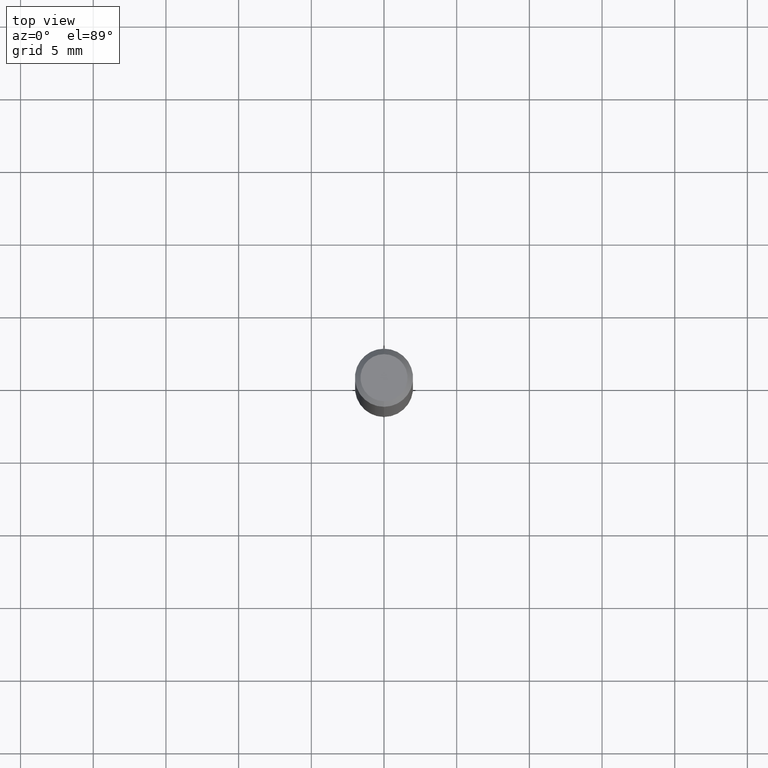
[diagram: clean part render]
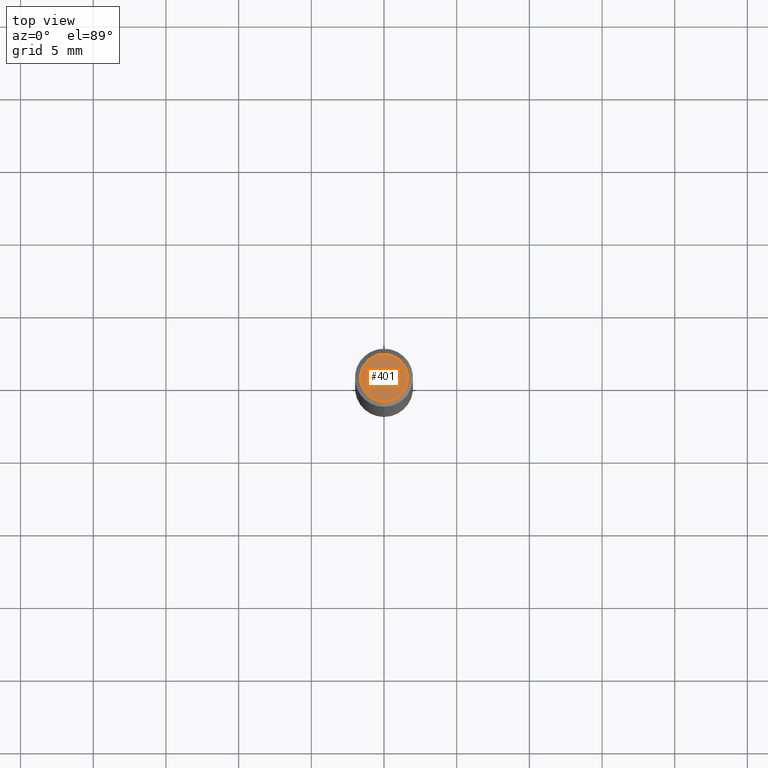
[diagram: same view with one face highlighted and labeled with its STEP entity id]
A machine part, top view. The second image highlights one B-rep face of the part: STEP entity #401.
In plain terms, the highlighted planar face has unit normal (0, -0, -1).
Its self-contained STEP definition (entity closure, byte-faithful):
#11 = AXIS2_PLACEMENT_3D ( 'NONE', #97, #333, #405 ) ;
#17 = FACE_OUTER_BOUND ( 'NONE', #79, .T. ) ;
#38 = VERTEX_POINT ( 'NONE', #270 ) ;
#39 = CARTESIAN_POINT ( 'NONE',  ( -5.749254559523100679E-45, 8.208447988563890447E-31, 2.350987752947930189E-16 ) ) ;
#53 = VERTEX_POINT ( 'NONE', #194 ) ;
#79 = EDGE_LOOP ( 'NONE', ( #318, #413 ) ) ;
#94 = EDGE_CURVE ( 'NONE', #38, #53, #262, .T. ) ;
#97 = CARTESIAN_POINT ( 'NONE',  ( 4.451638707024993845E-16, 0.06375000000000000111, -1.050330390857034540E-16 ) ) ;
#154 = EDGE_CURVE ( 'NONE', #53, #38, #214, .T. ) ;
#158 = DIRECTION ( 'NONE',  ( -2.445463423752014680E-29, 3.491489046793725372E-15, 1.000000000000000000 ) ) ;
#186 = AXIS2_PLACEMENT_3D ( 'NONE', #235, #158, #433 ) ;
#194 = CARTESIAN_POINT ( 'NONE',  ( 4.975360907851465623E-16, 0.06375000000000000111, 1.251634856169306932E-17 ) ) ;
#214 = CIRCLE ( 'NONE', #186, 0.06375000000000000111 ) ;
#235 = CARTESIAN_POINT ( 'NONE',  ( -5.749254559523100679E-45, 8.208447988563890447E-31, 2.350987752947930189E-16 ) ) ;
#262 = CIRCLE ( 'NONE', #424, 0.06375000000000000111 ) ;
#270 = CARTESIAN_POINT ( 'NONE',  ( -4.888104823412213911E-16, -0.06375000000000000111, 4.576812020278930316E-16 ) ) ;
#303 = DIRECTION ( 'NONE',  ( -6.982962677686264344E-15, -1.000000000000000000, 3.491489046793725767E-15 ) ) ;
#318 = ORIENTED_EDGE ( 'NONE', *, *, #154, .T. ) ;
#333 = DIRECTION ( 'NONE',  ( 2.445463423752014400E-29, -3.491489046793725372E-15, -1.000000000000000000 ) ) ;
#401 = ADVANCED_FACE ( 'NONE', ( #17 ), #481, .F. ) ;
#405 = DIRECTION ( 'NONE',  ( 6.982962677686265922E-15, 1.000000000000000000, -3.491489046793725372E-15 ) ) ;
#413 = ORIENTED_EDGE ( 'NONE', *, *, #94, .T. ) ;
#424 = AXIS2_PLACEMENT_3D ( 'NONE', #39, #479, #303 ) ;
#433 = DIRECTION ( 'NONE',  ( -6.982962677686264344E-15, -1.000000000000000000, 3.491489046793725767E-15 ) ) ;
#479 = DIRECTION ( 'NONE',  ( -2.445463423752014680E-29, 3.491489046793725372E-15, 1.000000000000000000 ) ) ;
#481 = PLANE ( 'NONE',  #11 ) ;